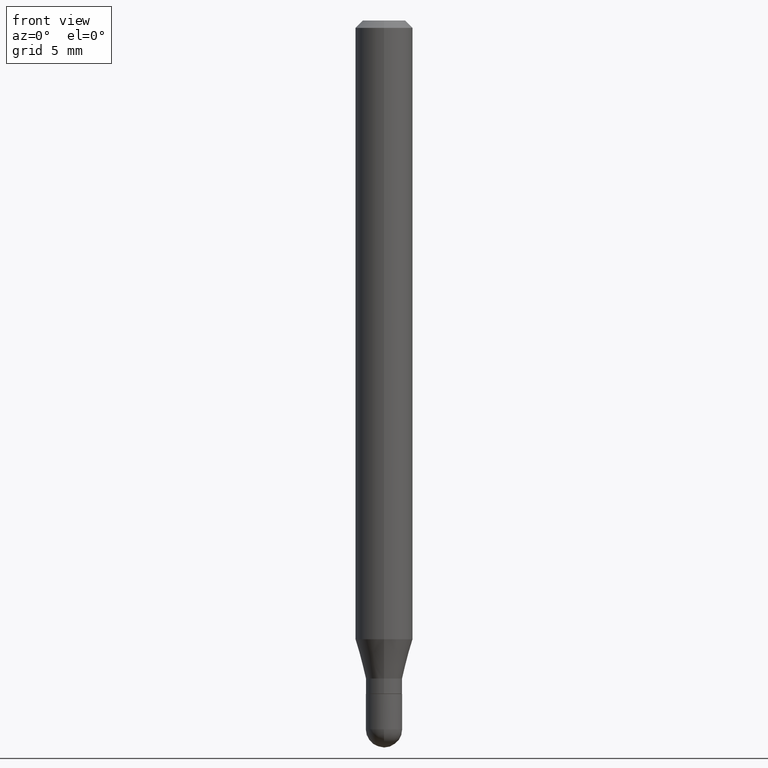
[diagram: clean part render]
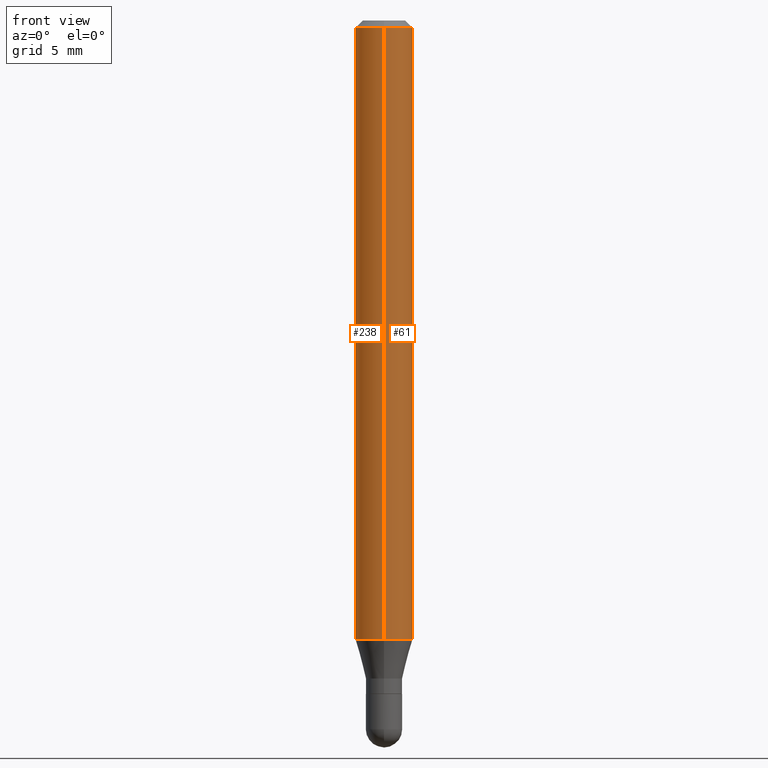
[diagram: same view with one multi-face feature highlighted, each face labeled with its STEP entity id]
A machine part, front view. The highlighted faces form ONE feature: a constant-radius fillet chain: 2 tangent blend faces with common blend radius 1.4999 mm. The faces share edges in the B-rep.
Their STEP definitions:
[1] entity #238 (Cylinder):
#1 = LINE ( 'NONE', #42, #32 ) ;
#8 = DIRECTION ( 'NONE',  ( -2.445517740109687273E-29, 3.491411262678042985E-15, 1.000000000000000000 ) ) ;
#15 = VERTEX_POINT ( 'NONE', #29 ) ;
#18 = ORIENTED_EDGE ( 'NONE', *, *, #209, .F. ) ;
#29 = CARTESIAN_POINT ( 'NONE',  ( -4.123439461173736383E-16, -0.05905000000000005383, -0.01499999999999981730 ) ) ;
#32 = VECTOR ( 'NONE', #82, 39.37007874015748143 ) ;
#40 = CARTESIAN_POINT ( 'NONE',  ( 0.000000000000000000, 0.000000000000000000, 0.000000000000000000 ) ) ;
#42 = CARTESIAN_POINT ( 'NONE',  ( -4.123439461173739834E-16, -0.05904999999999999832, 2.061678350611384219E-16 ) ) ;
#63 = AXIS2_PLACEMENT_3D ( 'NONE', #153, #106, #279 ) ;
#76 = EDGE_CURVE ( 'NONE', #299, #15, #117, .T. ) ;
#82 = DIRECTION ( 'NONE',  ( -2.445517740109687273E-29, 3.491411262678042985E-15, 1.000000000000000000 ) ) ;
#86 = AXIS2_PLACEMENT_3D ( 'NONE', #40, #243, #476 ) ;
#88 = ORIENTED_EDGE ( 'NONE', *, *, #76, .F. ) ;
#106 = DIRECTION ( 'NONE',  ( -2.445517740109687553E-29, 3.491411262678042591E-15, 1.000000000000000000 ) ) ;
#117 = CIRCLE ( 'NONE', #205, 0.05904999999999999832 ) ;
#124 = CARTESIAN_POINT ( 'NONE',  ( 4.195754854663390985E-16, 0.05904999999999999832, -2.061678350611384219E-16 ) ) ;
#153 = CARTESIAN_POINT ( 'NONE',  ( 3.113880428590634668E-29, -4.445617801376670598E-15, -1.273301100016133836 ) ) ;
#165 = CARTESIAN_POINT ( 'NONE',  ( 4.195754854663699134E-16, 0.05904999999999551580, -1.273301100016134058 ) ) ;
#180 = DIRECTION ( 'NONE',  ( -2.445517740109687553E-29, 3.491411262678042591E-15, 1.000000000000000000 ) ) ;
#205 = AXIS2_PLACEMENT_3D ( 'NONE', #491, #180, #339 ) ;
#209 = EDGE_CURVE ( 'NONE', #276, #299, #396, .T. ) ;
#217 = EDGE_CURVE ( 'NONE', #447, #15, #1, .T. ) ;
#238 = ADVANCED_FACE ( 'NONE', ( #471 ), #327, .T. ) ;
#243 = DIRECTION ( 'NONE',  ( -2.445517740109687553E-29, 3.491411262678042591E-15, 1.000000000000000000 ) ) ;
#272 = CARTESIAN_POINT ( 'NONE',  ( -4.123439461173431685E-16, -0.05905000000000448085, -1.273301100016133613 ) ) ;
#276 = VERTEX_POINT ( 'NONE', #165 ) ;
#279 = DIRECTION ( 'NONE',  ( -6.982962677686265922E-15, -1.000000000000000000, 4.626330217890369336E-15 ) ) ;
#299 = VERTEX_POINT ( 'NONE', #478 ) ;
#302 = ORIENTED_EDGE ( 'NONE', *, *, #473, .T. ) ;
#327 = CYLINDRICAL_SURFACE ( 'NONE', #86, 0.05904999999999999832 ) ;
#336 = ORIENTED_EDGE ( 'NONE', *, *, #217, .T. ) ;
#339 = DIRECTION ( 'NONE',  ( -6.982962677686265922E-15, -1.000000000000000000, 3.505890868245046092E-15 ) ) ;
#342 = CIRCLE ( 'NONE', #63, 0.05904999999999999832 ) ;
#396 = LINE ( 'NONE', #124, #443 ) ;
#443 = VECTOR ( 'NONE', #8, 39.37007874015748143 ) ;
#445 = EDGE_LOOP ( 'NONE', ( #18, #302, #336, #88 ) ) ;
#447 = VERTEX_POINT ( 'NONE', #272 ) ;
#471 = FACE_OUTER_BOUND ( 'NONE', #445, .T. ) ;
#473 = EDGE_CURVE ( 'NONE', #276, #447, #342, .T. ) ;
#476 = DIRECTION ( 'NONE',  ( -6.982962677686265922E-15, -1.000000000000000000, 3.491411262678042985E-15 ) ) ;
#478 = CARTESIAN_POINT ( 'NONE',  ( 4.195754854663704558E-16, 0.05904999999999994975, -0.01500000000000023016 ) ) ;
#491 = CARTESIAN_POINT ( 'NONE',  ( 3.668276610164536795E-31, -5.237116894017072934E-17, -0.01500000000000002373 ) ) ;
[2] entity #61 (Cylinder):
#1 = LINE ( 'NONE', #42, #32 ) ;
#3 = DIRECTION ( 'NONE',  ( -2.445517740109687553E-29, 3.491411262678042591E-15, 1.000000000000000000 ) ) ;
#8 = DIRECTION ( 'NONE',  ( -2.445517740109687273E-29, 3.491411262678042985E-15, 1.000000000000000000 ) ) ;
#15 = VERTEX_POINT ( 'NONE', #29 ) ;
#19 = DIRECTION ( 'NONE',  ( -2.445517740109687553E-29, 3.491411262678042591E-15, 1.000000000000000000 ) ) ;
#29 = CARTESIAN_POINT ( 'NONE',  ( -4.123439461173736383E-16, -0.05905000000000005383, -0.01499999999999981730 ) ) ;
#32 = VECTOR ( 'NONE', #82, 39.37007874015748143 ) ;
#42 = CARTESIAN_POINT ( 'NONE',  ( -4.123439461173739834E-16, -0.05904999999999999832, 2.061678350611384219E-16 ) ) ;
#61 = ADVANCED_FACE ( 'NONE', ( #234 ), #458, .T. ) ;
#77 = CARTESIAN_POINT ( 'NONE',  ( 3.113880428590634668E-29, -4.445617801376670598E-15, -1.273301100016133836 ) ) ;
#82 = DIRECTION ( 'NONE',  ( -2.445517740109687273E-29, 3.491411262678042985E-15, 1.000000000000000000 ) ) ;
#107 = EDGE_CURVE ( 'NONE', #447, #276, #381, .T. ) ;
#110 = ORIENTED_EDGE ( 'NONE', *, *, #209, .T. ) ;
#124 = CARTESIAN_POINT ( 'NONE',  ( 4.195754854663390985E-16, 0.05904999999999999832, -2.061678350611384219E-16 ) ) ;
#147 = DIRECTION ( 'NONE',  ( -6.982962677686265922E-15, -1.000000000000000000, 3.491411262678042985E-15 ) ) ;
#158 = CIRCLE ( 'NONE', #482, 0.05904999999999999832 ) ;
#160 = DIRECTION ( 'NONE',  ( -6.982962677686265922E-15, -1.000000000000000000, 3.505890868245046092E-15 ) ) ;
#165 = CARTESIAN_POINT ( 'NONE',  ( 4.195754854663699134E-16, 0.05904999999999551580, -1.273301100016134058 ) ) ;
#174 = AXIS2_PLACEMENT_3D ( 'NONE', #375, #19, #147 ) ;
#176 = ORIENTED_EDGE ( 'NONE', *, *, #229, .F. ) ;
#195 = AXIS2_PLACEMENT_3D ( 'NONE', #77, #397, #392 ) ;
#209 = EDGE_CURVE ( 'NONE', #276, #299, #396, .T. ) ;
#217 = EDGE_CURVE ( 'NONE', #447, #15, #1, .T. ) ;
#229 = EDGE_CURVE ( 'NONE', #15, #299, #158, .T. ) ;
#234 = FACE_OUTER_BOUND ( 'NONE', #505, .T. ) ;
#272 = CARTESIAN_POINT ( 'NONE',  ( -4.123439461173431685E-16, -0.05905000000000448085, -1.273301100016133613 ) ) ;
#276 = VERTEX_POINT ( 'NONE', #165 ) ;
#296 = ORIENTED_EDGE ( 'NONE', *, *, #107, .T. ) ;
#299 = VERTEX_POINT ( 'NONE', #478 ) ;
#323 = CARTESIAN_POINT ( 'NONE',  ( 3.668276610164536795E-31, -5.237116894017072934E-17, -0.01500000000000002373 ) ) ;
#375 = CARTESIAN_POINT ( 'NONE',  ( 0.000000000000000000, 0.000000000000000000, 0.000000000000000000 ) ) ;
#381 = CIRCLE ( 'NONE', #195, 0.05904999999999999832 ) ;
#392 = DIRECTION ( 'NONE',  ( -6.982962677686265922E-15, -1.000000000000000000, 4.626330217890369336E-15 ) ) ;
#396 = LINE ( 'NONE', #124, #443 ) ;
#397 = DIRECTION ( 'NONE',  ( -2.445517740109687553E-29, 3.491411262678042591E-15, 1.000000000000000000 ) ) ;
#425 = ORIENTED_EDGE ( 'NONE', *, *, #217, .F. ) ;
#443 = VECTOR ( 'NONE', #8, 39.37007874015748143 ) ;
#447 = VERTEX_POINT ( 'NONE', #272 ) ;
#458 = CYLINDRICAL_SURFACE ( 'NONE', #174, 0.05904999999999999832 ) ;
#478 = CARTESIAN_POINT ( 'NONE',  ( 4.195754854663704558E-16, 0.05904999999999994975, -0.01500000000000023016 ) ) ;
#482 = AXIS2_PLACEMENT_3D ( 'NONE', #323, #3, #160 ) ;
#505 = EDGE_LOOP ( 'NONE', ( #296, #110, #176, #425 ) ) ;